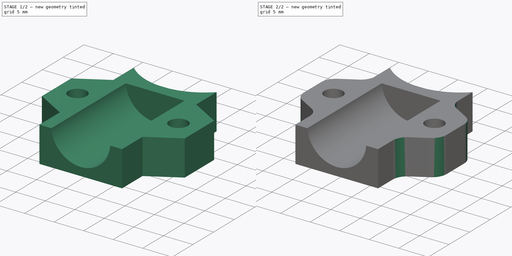
[diagram: build sequence overview — one tinted view per stage of 2, left to right]
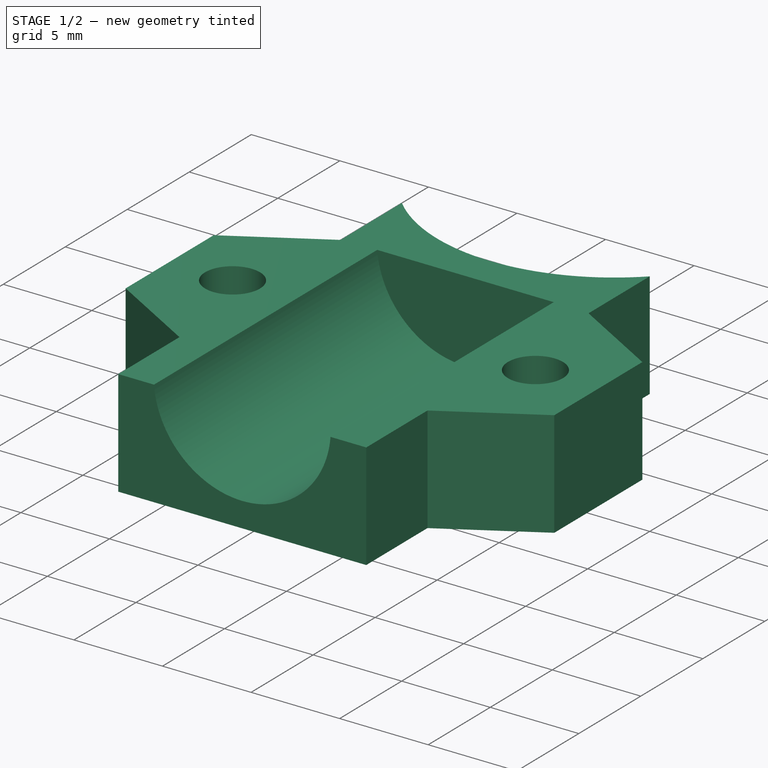
[diagram: stage 1 of 2 — iso view after this stage's code; geometry added in this stage tinted green]
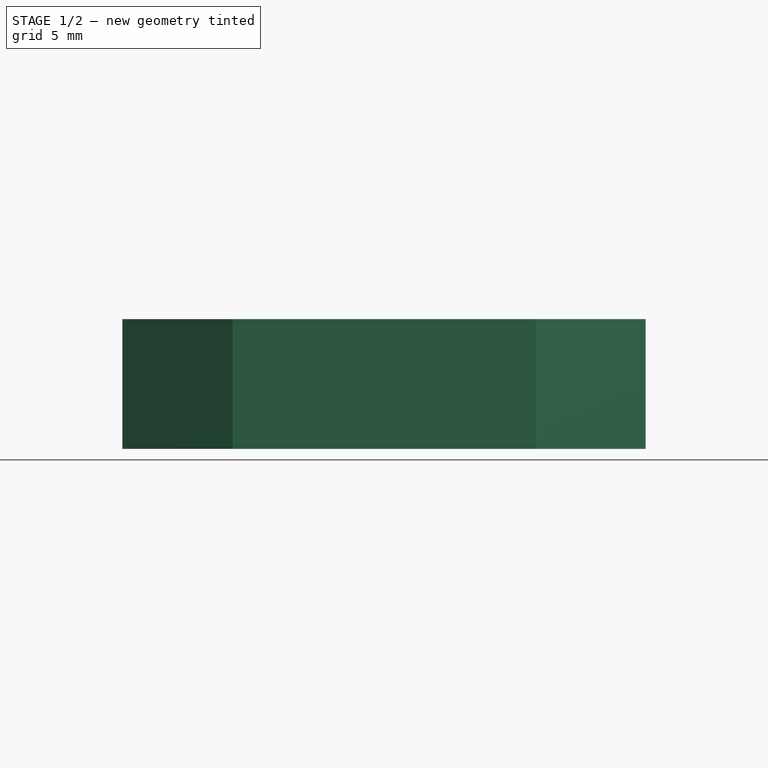
[diagram: stage 1 of 2 — front view after this stage's code; geometry added in this stage tinted green]
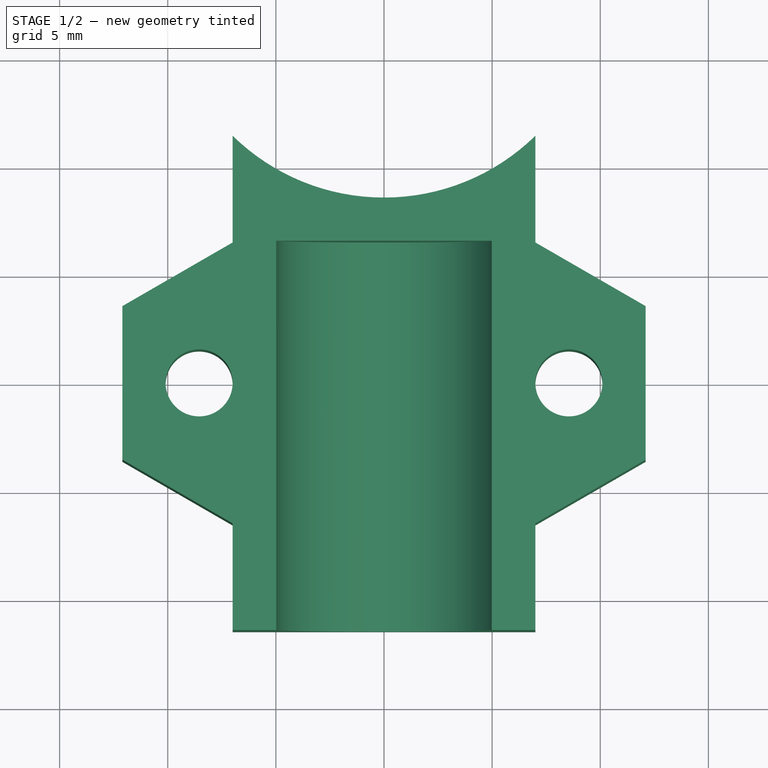
[diagram: stage 1 of 2 — top view after this stage's code; geometry added in this stage tinted green]
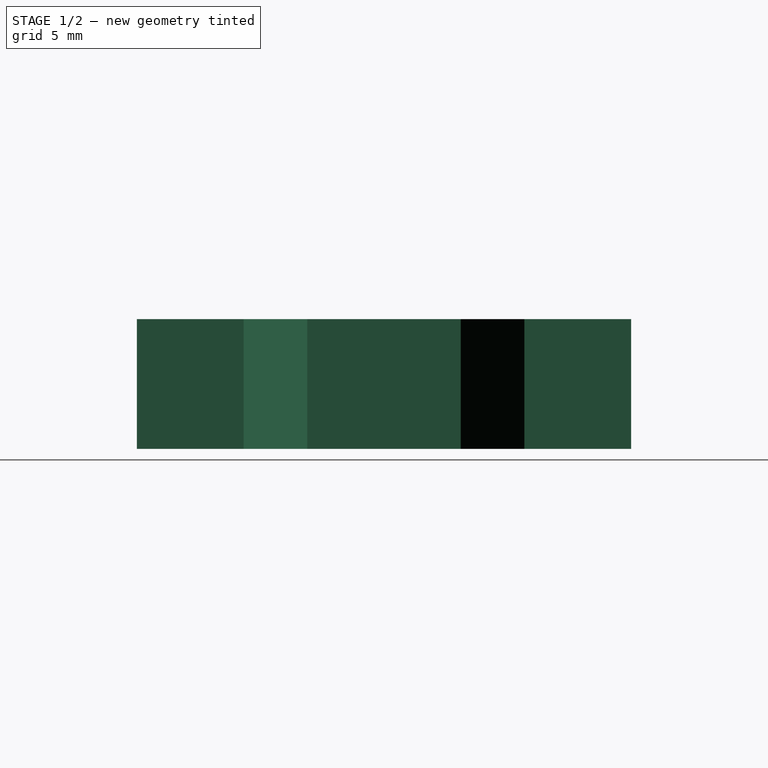
[diagram: stage 1 of 2 — right view after this stage's code; geometry added in this stage tinted green]
FCSTD DOCUMENT  (FreeCAD 0.16RUnknown)
Label: joint-i-top.004
License: All rights reserved
LicenseURL: http://en.wikipedia.org/wiki/All_rights_reserved
objects: Sketcher::SketchObject×3, PartDesign::Pocket×2, Part::Extrusion×1, Part::Fillet×1
note: 9 computed .brp shape members not serialized (recipe doc carries the construction recipe); baked Part::Feature solids carry a one-line shape summary decoded from their .brp

FEATURE [Sketcher::SketchObject] Sketch
  sketch-geometry (37):
    g0: LineSegment StartX=-7 StartY=11.4293 StartZ=0 EndX=-7 EndY=6.49449 EndZ=0
    g1: LineSegment StartX=-7 StartY=6.49449 StartZ=0 EndX=-12.1 EndY=3.55 EndZ=0
    g2: LineSegment StartX=-12.1 StartY=3.55 StartZ=0 EndX=-12.1 EndY=-3.55 EndZ=0
    g3: LineSegment StartX=-12.1 StartY=-3.55 StartZ=0 EndX=-7 EndY=-6.49449 EndZ=0
    g4: LineSegment StartX=-7 StartY=-6.49449 StartZ=0 EndX=-7 EndY=-11.4293 EndZ=0
    g5: LineSegment StartX=-7 StartY=-11.4293 StartZ=0 EndX=7 EndY=-11.4293 EndZ=0
    g6: LineSegment StartX=7 StartY=-11.4293 StartZ=0 EndX=7 EndY=-6.49449 EndZ=0
    g7: LineSegment StartX=7 StartY=-6.49449 StartZ=0 EndX=12.1 EndY=-3.55 EndZ=0
    g8: LineSegment StartX=12.1 StartY=-3.55 StartZ=0 EndX=12.1 EndY=3.55 EndZ=0
    g9: LineSegment StartX=12.1 StartY=3.55 StartZ=0 EndX=7 EndY=6.49449 EndZ=0
    g10: LineSegment StartX=7 StartY=6.49449 StartZ=0 EndX=7 EndY=11.4293 EndZ=0
    g11: LineSegment [constr] StartX=-12.1 StartY=3.55 StartZ=0 EndX=12.1 EndY=3.55 EndZ=0
    g12: LineSegment [constr] StartX=-12.1 StartY=-3.55 StartZ=0 EndX=12.1 EndY=-3.55 EndZ=0
    g13: LineSegment [constr] StartX=-7 StartY=6.49449 StartZ=0 EndX=-7 EndY=-6.49449 EndZ=0
    g14: LineSegment [constr] StartX=7 StartY=6.49449 StartZ=0 EndX=7 EndY=-6.49449 EndZ=0
    g15: ArcOfCircle CenterX=-1e-12 CenterY=18.5707 CenterZ=0 NormalX=0 NormalY=0 NormalZ=1 Radius=10 StartAngle=3.93699 EndAngle=5.48779
    g16: LineSegment [constr] StartX=-5 StartY=-11.4293 StartZ=0 EndX=-5 EndY=6.57071 EndZ=0
    g17: LineSegment [constr] StartX=-5 StartY=6.57071 StartZ=0 EndX=5 EndY=6.57071 EndZ=0
    g18: LineSegment [constr] StartX=5 StartY=6.57071 StartZ=0 EndX=5 EndY=-11.4293 EndZ=0
    g19: GeomPoint [constr] X=0 Y=8.57071 Z=0
    g20: LineSegment [constr] StartX=-7 StartY=11.4293 StartZ=0 EndX=7 EndY=11.4293 EndZ=0
    g21: Circle CenterX=-8.55 CenterY=0 CenterZ=0 NormalX=0 NormalY=0 NormalZ=1 Radius=1.55
    g22: Circle CenterX=8.55 CenterY=0 CenterZ=0 NormalX=0 NormalY=0 NormalZ=1 Radius=1.55
    g23: LineSegment [constr] StartX=-12.1 StartY=0 StartZ=0 EndX=-10.1 EndY=0 EndZ=0
    g24: LineSegment [constr] StartX=-10.1 StartY=0 StartZ=0 EndX=-8.55 EndY=0 EndZ=0
    g25: LineSegment [constr] StartX=-8.55 StartY=0 StartZ=0 EndX=-7 EndY=0 EndZ=0
    g26: LineSegment [constr] StartX=7 StartY=0 StartZ=0 EndX=8.55 EndY=0 EndZ=0
    g27: LineSegment [constr] StartX=8.55 StartY=0 StartZ=0 EndX=10.1 EndY=0 EndZ=0
    g28: LineSegment [constr] StartX=10.1 StartY=0 StartZ=0 EndX=12.1 EndY=0 EndZ=0
    g29: LineSegment [constr] StartX=-7 StartY=0 StartZ=0 EndX=-5 EndY=0 EndZ=0
    g30: LineSegment [constr] StartX=-5 StartY=0 StartZ=0 EndX=0 EndY=0 EndZ=0
    g31: LineSegment [constr] StartX=0 StartY=0 StartZ=0 EndX=5 EndY=0 EndZ=0
    g32: LineSegment [constr] StartX=5 StartY=0 StartZ=0 EndX=7 EndY=0 EndZ=0
    g33: LineSegment [constr] StartX=-8.55 StartY=3.55 StartZ=0 EndX=-8.55 EndY=1.55 EndZ=0
    g34: LineSegment [constr] StartX=-8.55 StartY=1.55 StartZ=0 EndX=-8.55 EndY=0 EndZ=0
    g35: LineSegment [constr] StartX=-8.55 StartY=0 StartZ=0 EndX=-8.55 EndY=-1.55 EndZ=0
    g36: LineSegment [constr] StartX=-8.55 StartY=-1.55 StartZ=0 EndX=-8.55 EndY=-3.55 EndZ=0
  constraints (107):
    c: Vertical(g0)
    c: Coincident(g0,g1)
    c: Coincident(g1,g2)
    c: Vertical(g2)
    c: Coincident(g2,g3)
    c: Coincident(g3,g4)
    c: Vertical(g4)
    c: Coincident(g4,g5)
    c: Horizontal(g5)
    c: Coincident(g5,g6)
    c: Vertical(g6)
    c: Coincident(g6,g7)
    c: Coincident(g7,g8)
    c: Vertical(g8)
    c: Coincident(g8,g9)
    c: Coincident(g9,g10)
    c: Vertical(g10)
    c: Horizontal(g11)
    c: Horizontal(g12)
    c: Vertical(g13)
    c: Vertical(g14)
    c: Coincident(g9,g14)
    c: Coincident(g8,g11)
    c: Coincident(g7,g12)
    c: Coincident(g6,g14)
    c: Coincident(g3,g13)
    c: Coincident(g2,g12)
    c: Coincident(g1,g11)
    c: Coincident(g0,g13)
    c: Coincident(g10,g15)
    c: Coincident(g0,g15)
    c: Vertical(g16)
    c: Coincident(g16,g17)
    c: Horizontal(g17)
    c: Coincident(g17,g18)
    c: Vertical(g18)
    c: PointOnObject(g16,g5)
    c: PointOnObject(g18,g5)
    c: PointOnObject(g19,g15)
    c: PointOnObject(g19,g-2)
    c: DistanceY(g17,g19) = 2
    c: DistanceY(g5,g19) = 20
    c: Horizontal(g20)
    c: Coincident(g10,g20)
    c: Coincident(g0,g20)
    c: DistanceX(g5,g5) = 14
    c: DistanceX(g17,g17) = 10
    c: Angle(g1,g13) = 1.0472
    c: Equal(g1,g9)
    c: Equal(g9,g7)
    c: Equal(g7,g3)
    c: Equal(g0,g10)
    c: Equal(g10,g4)
    c: Equal(g4,g6)
    c: Horizontal(g23)
    c: Coincident(g23,g24)
    c: Horizontal(g24)
    c: Coincident(g24,g25)
    c: Horizontal(g25)
    c: Horizontal(g26)
    c: Coincident(g26,g27)
    c: Horizontal(g27)
    c: Coincident(g27,g28)
    c: Horizontal(g28)
    c: PointOnObject(g23,g2)
    c: PointOnObject(g23,g21)
    c: Coincident(g24,g21)
    c: PointOnObject(g25,g21)
    c: PointOnObject(g26,g22)
    c: Coincident(g26,g22)
    c: PointOnObject(g27,g22)
    c: PointOnObject(g28,g8)
    c: Horizontal(g29)
    c: Coincident(g29,g30)
    c: Horizontal(g30)
    c: Coincident(g30,g31)
    c: Horizontal(g31)
    c: Horizontal(g32)
    c: Coincident(g31,g32)
    c: Coincident(g26,g32)
    c: Coincident(g29,g25)
    c: PointOnObject(g29,g16)
    c: PointOnObject(g30,g-2)
    c: PointOnObject(g31,g18)
    c: Vertical(g33)
    c: Coincident(g33,g34)
    c: Vertical(g34)
    c: Coincident(g34,g35)
    c: Vertical(g35)
    c: Coincident(g35,g36)
    c: Vertical(g36)
    c: PointOnObject(g36,g12)
    c: PointOnObject(g35,g21)
    c: PointOnObject(g33,g21)
    c: Coincident(g34,g21)
    c: PointOnObject(g33,g11)
    c: Equal(g23,g36)
    c: Equal(g36,g33)
    c: Equal(g33,g29)
    c: Equal(g29,g32)
    c: Equal(g32,g28)
    c: DistanceX(g23,g23) = 2
    c: Equal(g21,g22)
    c: Radius(g21) = 1.55
    c: Equal(g30,g31)
    c: Coincident(g30,g-1)
    c: Radius(g15) = 10
FEATURE [Part::Extrusion] Extrude
  Base = -> Sketch
  Dir = (0,0,6)
  Solid = true
FEATURE [Sketcher::SketchObject] Sketch001
  ExternalGeometry = -> [Extrude]
  Placement = pos=(0,-11.4293,0) rot=(1,0,0;1.5708rad)
  Support = -> Extrude [Face6]
  sketch-geometry (5):
    g0: LineSegment [constr] StartX=-7 StartY=6 StartZ=0 EndX=-7 EndY=6.4 EndZ=0
    g1: LineSegment [constr] StartX=-7 StartY=6.4 StartZ=0 EndX=0 EndY=6.4 EndZ=0
    g2: LineSegment [constr] StartX=0 StartY=6.4 StartZ=0 EndX=7 EndY=6.4 EndZ=0
    g3: LineSegment [constr] StartX=7 StartY=6.4 StartZ=0 EndX=7 EndY=6 EndZ=0
    g4: Circle CenterX=0 CenterY=6.4 CenterZ=0 NormalX=0 NormalY=0 NormalZ=1 Radius=5
  constraints (13):
    c: Vertical(g0)
    c: Coincident(g0,g1)
    c: Horizontal(g1)
    c: Coincident(g1,g2)
    c: Horizontal(g2)
    c: Coincident(g2,g3)
    c: Vertical(g3)
    c: Coincident(g3,g-3)
    c: Coincident(g0,g-3)
    c: PointOnObject(g1,g-2)
    c: DistanceY(g3,g3) = 0.4
    c: Coincident(g1,g4)
    c: Radius(g4) = 5
FEATURE [PartDesign::Pocket] Pocket
  Length = 18
  Sketch = -> Sketch001
  Type = 0
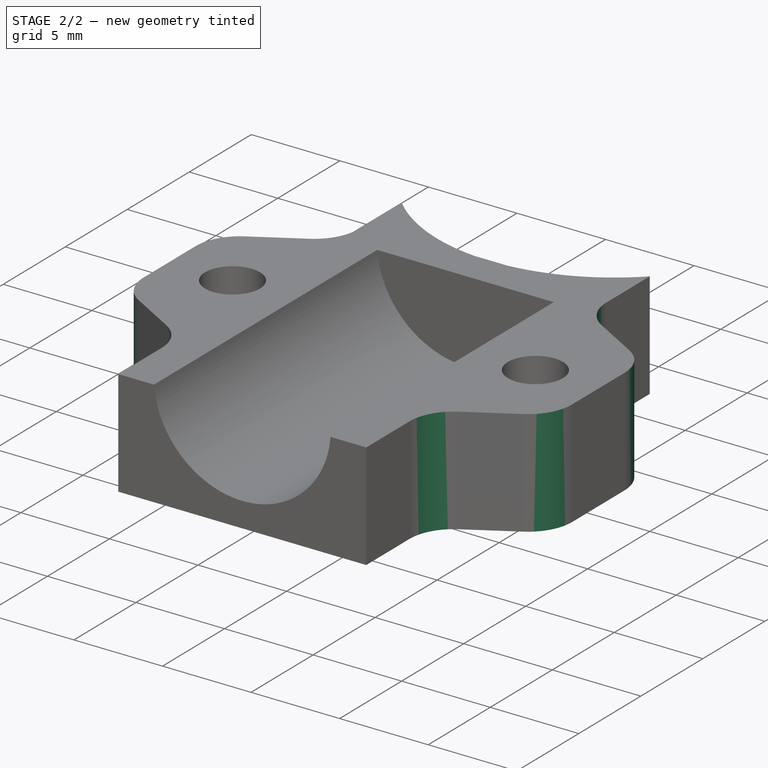
[diagram: stage 2 of 2 — iso view after this stage's code; geometry added in this stage tinted green]
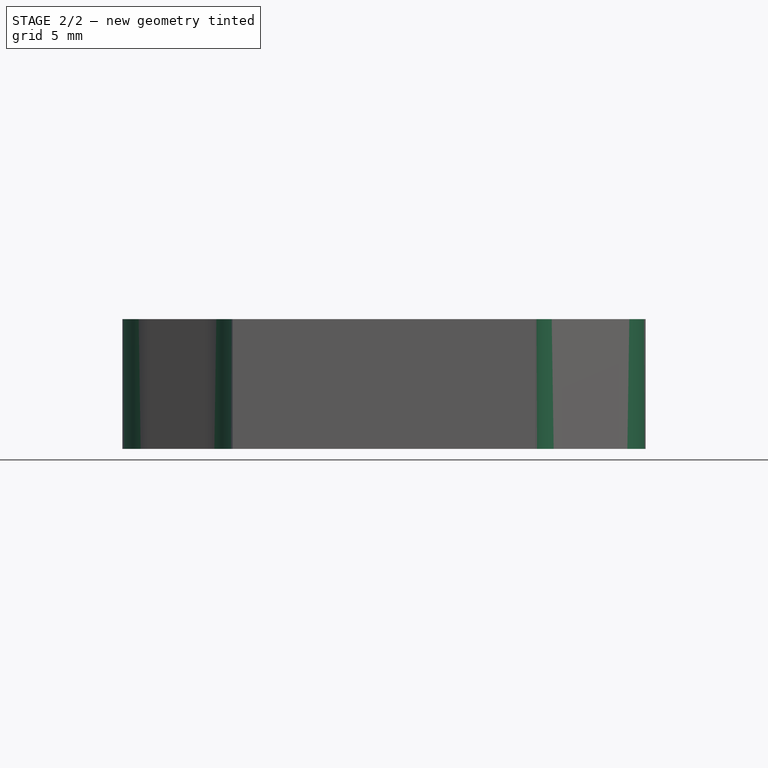
[diagram: stage 2 of 2 — front view after this stage's code; geometry added in this stage tinted green]
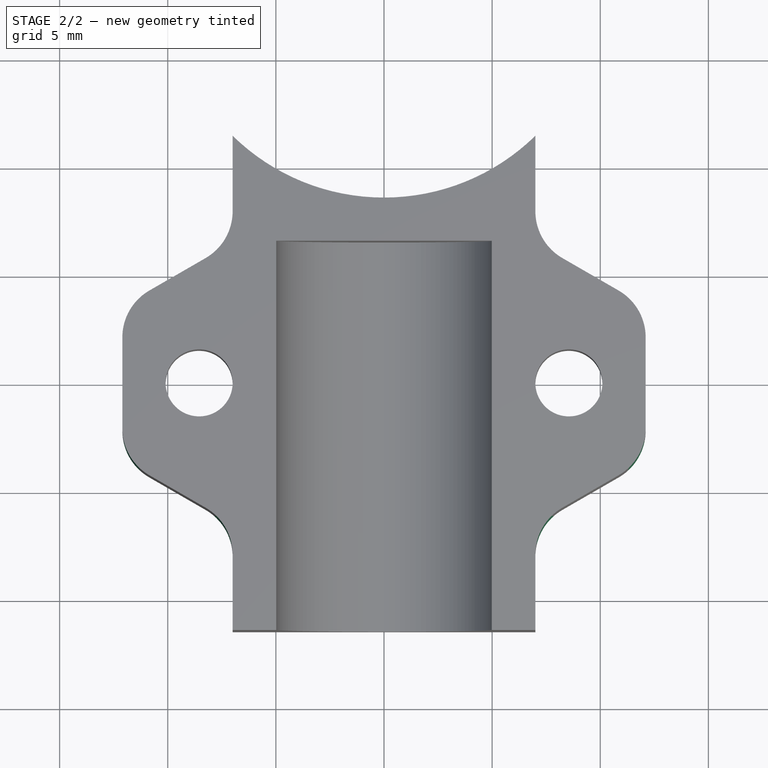
[diagram: stage 2 of 2 — top view after this stage's code; geometry added in this stage tinted green]
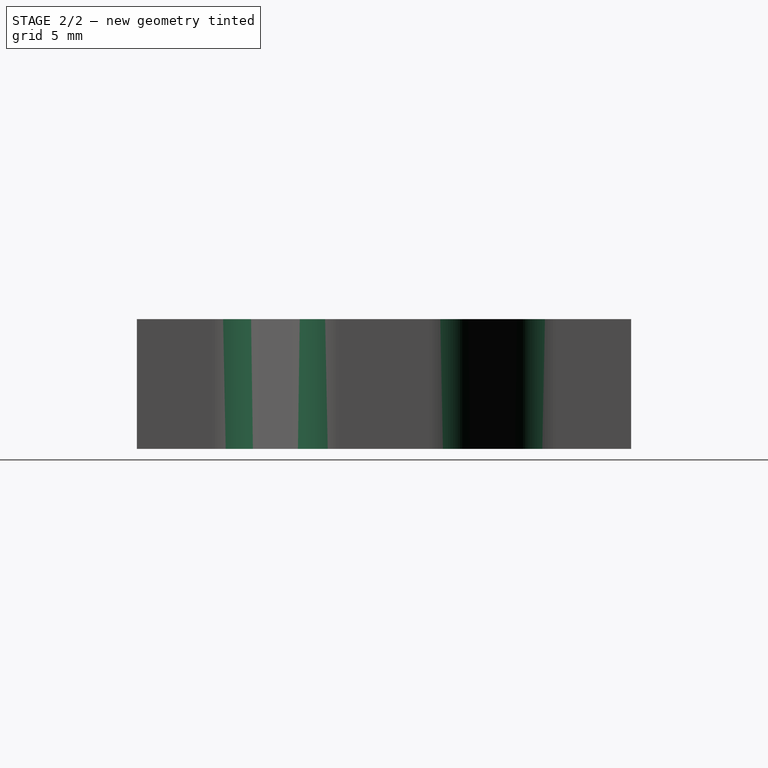
[diagram: stage 2 of 2 — right view after this stage's code; geometry added in this stage tinted green]
FEATURE [Part::Fillet] Fillet
  Base = -> Pocket
  Edges = 8 edges r=2.5: [Edge2,Edge8,Edge37,Edge38,Edge39,Edge43,Edge44,Edge45]
FEATURE [Sketcher::SketchObject] Sketch002
  ExternalGeometry = -> [Fillet]
  Placement = pos=(0,0,0) rot=(1,0,0;3.14159rad)
  Support = -> Fillet [Face2]
  sketch-geometry (2):
    g0: Circle CenterX=-8.55 CenterY=0 CenterZ=0 NormalX=0 NormalY=0 NormalZ=1 Radius=3
    g1: Circle CenterX=8.55 CenterY=0 CenterZ=0 NormalX=0 NormalY=0 NormalZ=1 Radius=3
  constraints (4):
    c: Coincident(g1,g-4)
    c: Coincident(g0,g-3)
    c: Equal(g0,g1)
    c: Radius(g0) = 3
FEATURE [PartDesign::Pocket] Pocket001
  Length = 2
  Sketch = -> Sketch002
  Type = 0
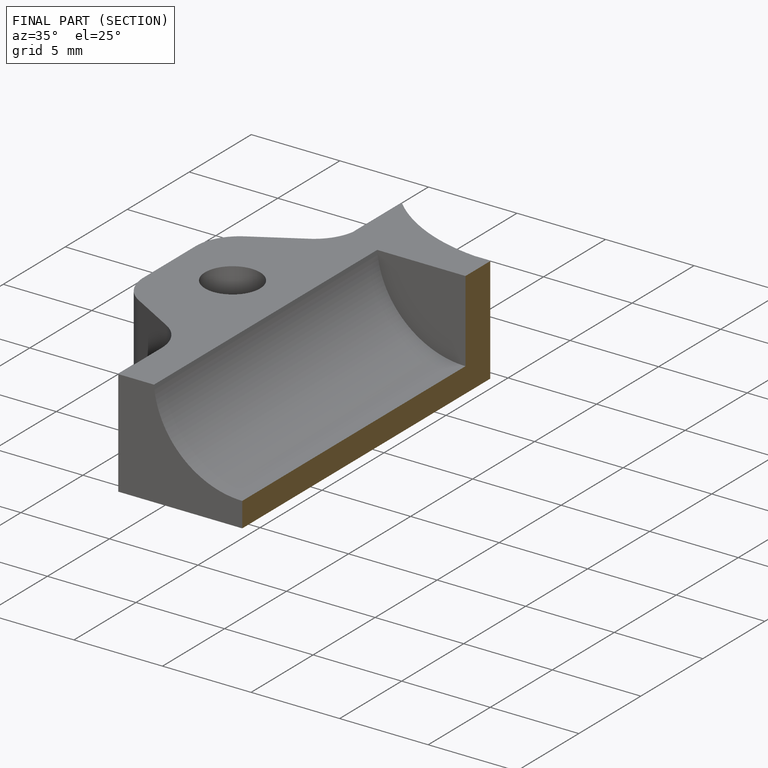
[diagram: finished part — half-section view (interior)]
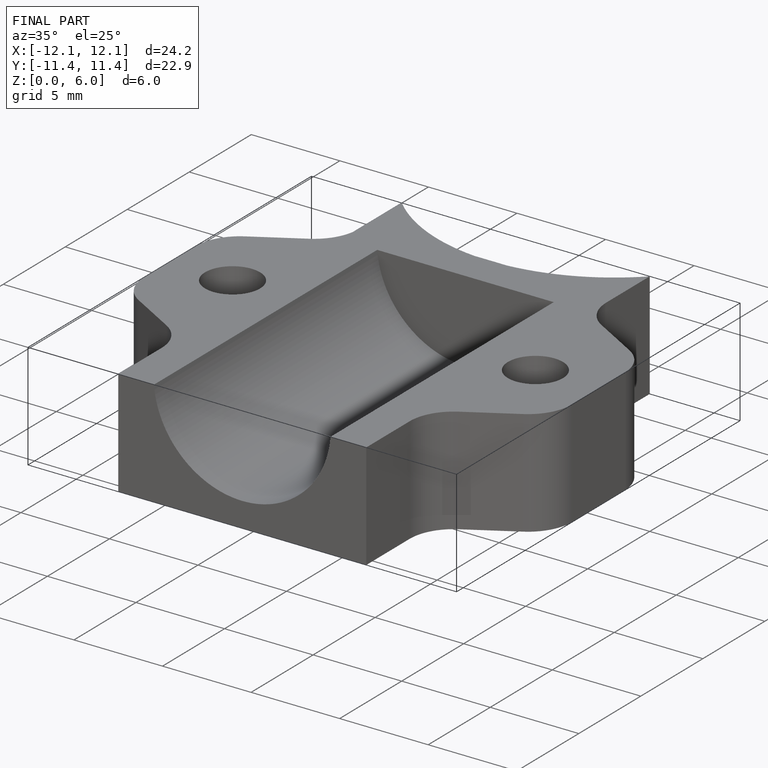
[diagram: finished part — iso view with bounding-box wireframe]
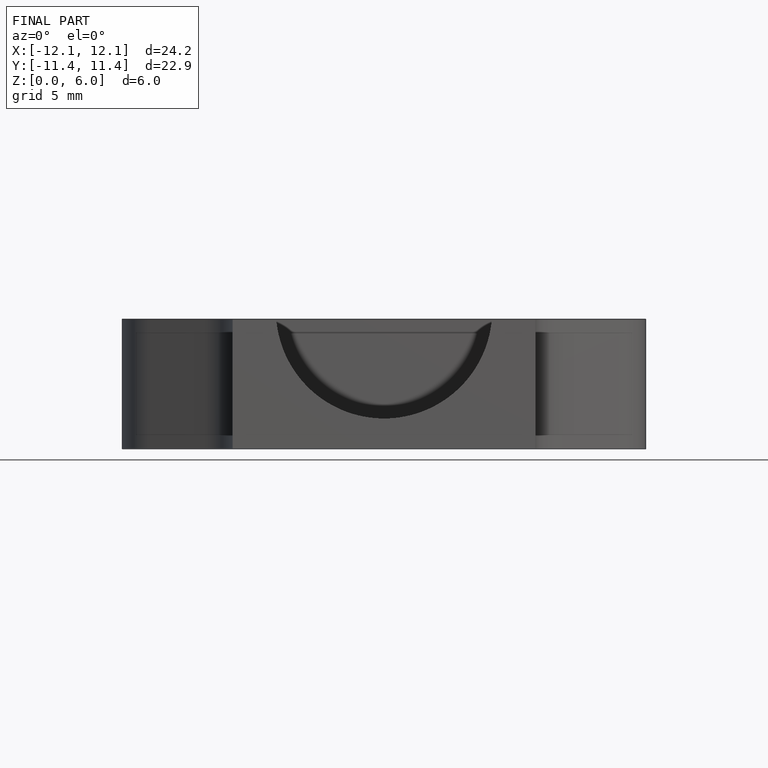
[diagram: finished part — front view with bounding-box wireframe]
